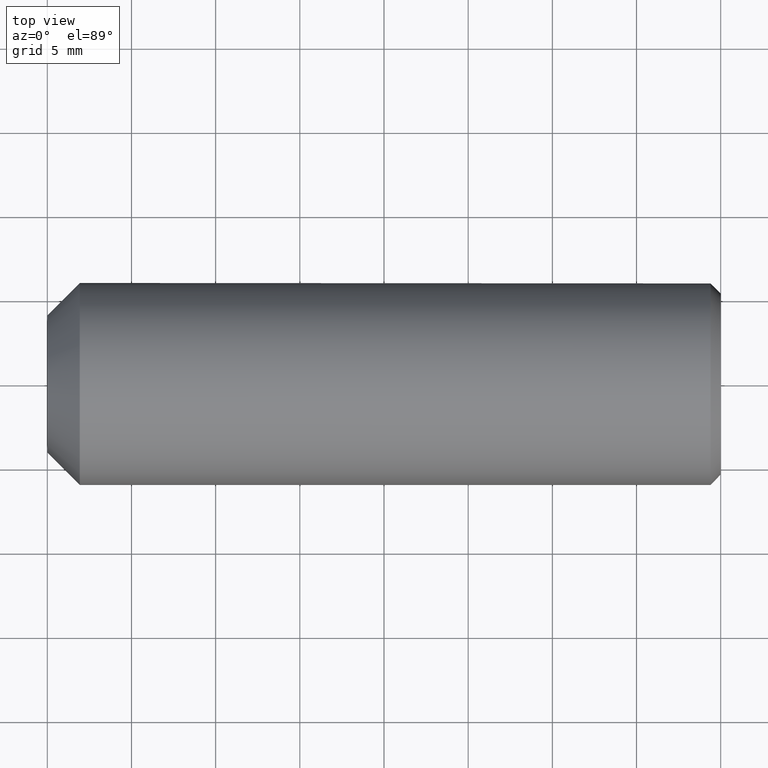
[diagram: clean part render]
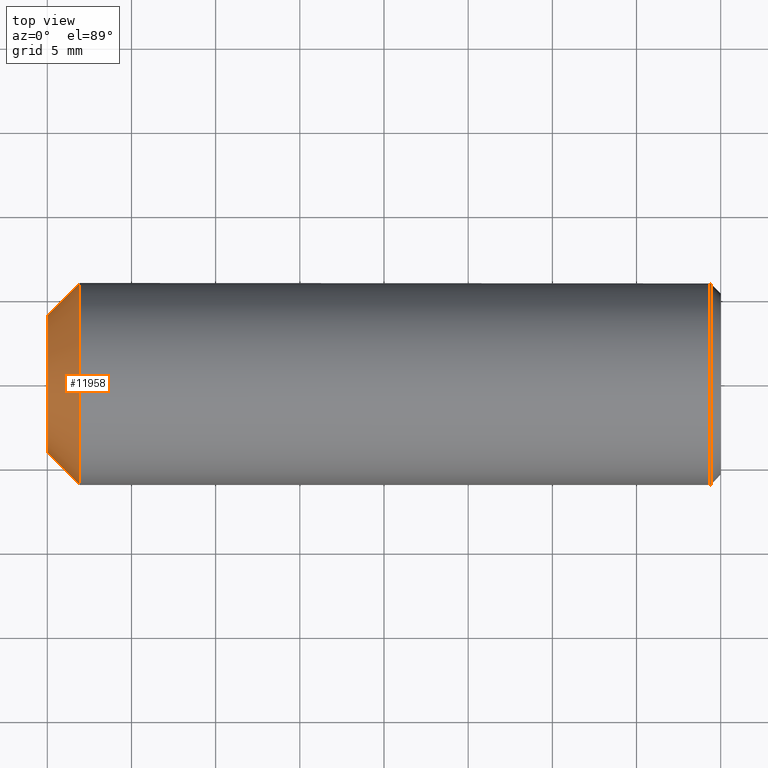
[diagram: same view with one face highlighted and labeled with its STEP entity id]
A machine part, top view. The second image highlights one B-rep face of the part: STEP entity #11958.
In plain terms, the highlighted conical surface has half-angle 45 deg.
Its self-contained STEP definition (entity closure, byte-faithful):
#758 = DIRECTION ( 'NONE',  ( 2.351807389454579400E-017, 1.000000000000000000, 0.0000000000000000000 ) ) ;
#1135 = DIRECTION ( 'NONE',  ( -1.000000000000000000, 2.351807389454579400E-017, -0.0000000000000000000 ) ) ;
#1196 = CARTESIAN_POINT ( 'NONE',  ( 1.929999999999980200, -4.538988261647291400E-017, 0.0000000000000000000 ) ) ;
#1220 = AXIS2_PLACEMENT_3D ( 'NONE', #1196, #1135, #3850 ) ;
#1526 = ORIENTED_EDGE ( 'NONE', *, *, #10871, .F. ) ;
#1644 = AXIS2_PLACEMENT_3D ( 'NONE', #14159, #16695, #758 ) ;
#1743 = CIRCLE ( 'NONE', #1220, 6.000000000000000000 ) ;
#2793 = VERTEX_POINT ( 'NONE', #15303 ) ;
#3850 = DIRECTION ( 'NONE',  ( -3.614007241618347900E-017, -1.000000000000000000, 0.0000000000000000000 ) ) ;
#5125 = FACE_BOUND ( 'NONE', #13760, .T. ) ;
#6799 = CONICAL_SURFACE ( 'NONE', #1644, 4.070000000000000300, 0.7853981633974532800 ) ;
#9145 = FACE_OUTER_BOUND ( 'NONE', #11376, .T. ) ;
#9442 = CARTESIAN_POINT ( 'NONE',  ( -2.879881082169358400E-016, 6.772925609796348900E-033, 0.0000000000000000000 ) ) ;
#9868 = CARTESIAN_POINT ( 'NONE',  ( 1.929999999999980000, -6.000000000000000000, 0.0000000000000000000 ) ) ;
#10620 = CIRCLE ( 'NONE', #12852, 4.070000000000000300 ) ;
#10802 = DIRECTION ( 'NONE',  ( -1.000000000000000000, 2.351807389454579400E-017, -0.0000000000000000000 ) ) ;
#10871 = EDGE_CURVE ( 'NONE', #2793, #2793, #10620, .T. ) ;
#11376 = EDGE_LOOP ( 'NONE', ( #12630 ) ) ;
#11958 = ADVANCED_FACE ( 'NONE', ( #9145, #5125 ), #6799, .T. ) ;
#12177 = DIRECTION ( 'NONE',  ( -2.351807389454578800E-017, -1.000000000000000000, 0.0000000000000000000 ) ) ;
#12572 = EDGE_CURVE ( 'NONE', #14206, #14206, #1743, .T. ) ;
#12630 = ORIENTED_EDGE ( 'NONE', *, *, #12572, .T. ) ;
#12852 = AXIS2_PLACEMENT_3D ( 'NONE', #9442, #10802, #12177 ) ;
#13760 = EDGE_LOOP ( 'NONE', ( #1526 ) ) ;
#14159 = CARTESIAN_POINT ( 'NONE',  ( -2.879881082169358400E-016, 6.772925609796348900E-033, 0.0000000000000000000 ) ) ;
#14206 = VERTEX_POINT ( 'NONE', #9868 ) ;
#15303 = CARTESIAN_POINT ( 'NONE',  ( -3.837066689677372300E-016, -4.070000000000000300, 0.0000000000000000000 ) ) ;
#16695 = DIRECTION ( 'NONE',  ( 1.000000000000000000, -2.351807389454579400E-017, 0.0000000000000000000 ) ) ;